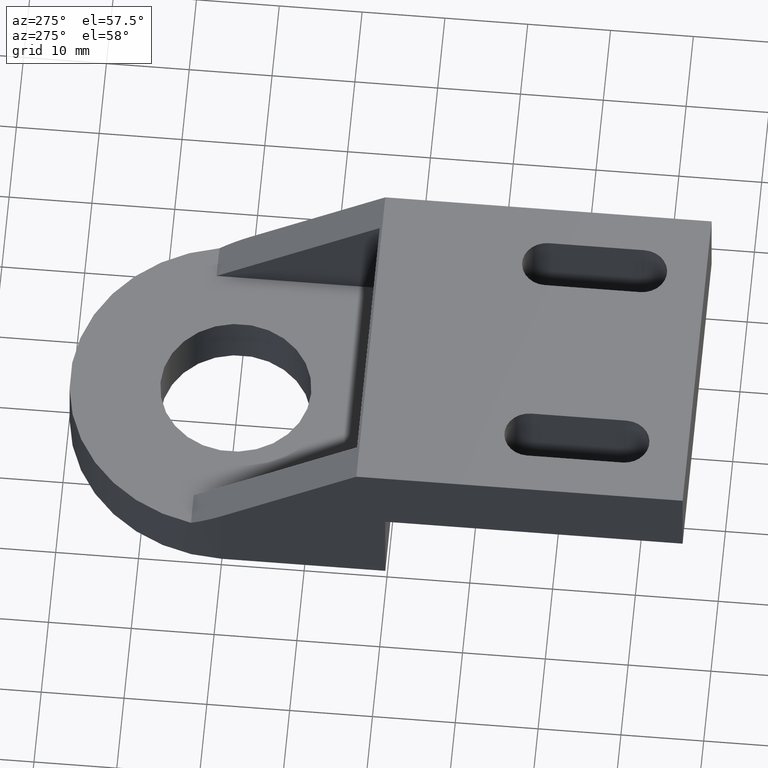
[diagram: clean part render]
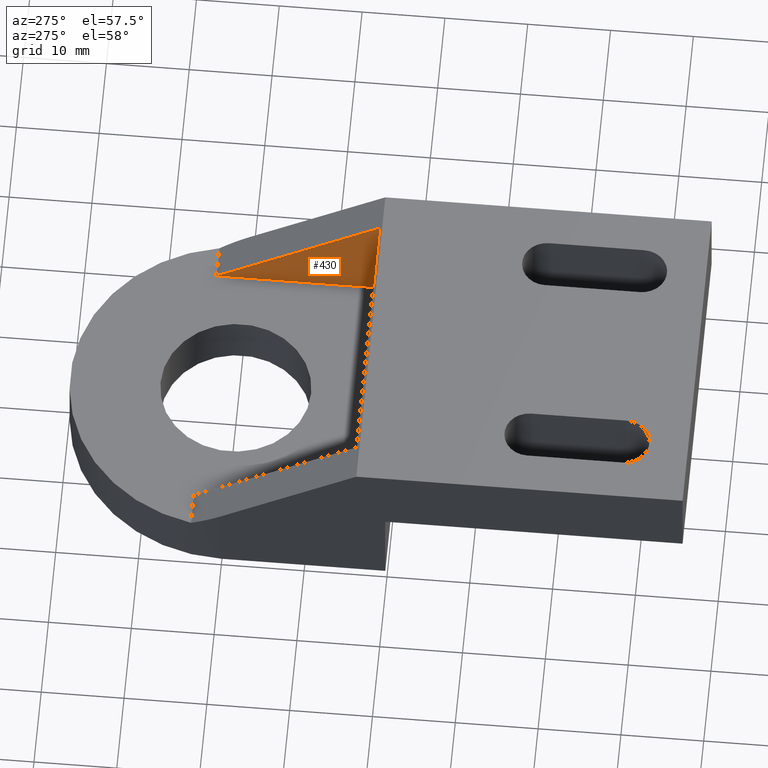
[diagram: same view with one face highlighted and labeled with its STEP entity id]
A machine part, auxiliary view. The second image highlights one B-rep face of the part: STEP entity #430.
In plain terms, the highlighted planar face has unit normal (-1, 0, 0).
Its self-contained STEP definition (entity closure, byte-faithful):
#52=FACE_OUTER_BOUND('',#79,.T.);
#79=EDGE_LOOP('',(#357,#358,#359));
#119=LINE('',#703,#165);
#125=LINE('',#715,#171);
#127=LINE('',#718,#173);
#165=VECTOR('',#571,23.8231571374463);
#171=VECTOR('',#581,13.3959999999465);
#173=VECTOR('',#585,19.6999999999212);
#216=VERTEX_POINT('',#700);
#217=VERTEX_POINT('',#702);
#221=VERTEX_POINT('',#714);
#264=EDGE_CURVE('',#216,#217,#119,.T.);
#270=EDGE_CURVE('',#217,#221,#125,.T.);
#272=EDGE_CURVE('',#221,#216,#127,.T.);
#357=ORIENTED_EDGE('',*,*,#270,.F.);
#358=ORIENTED_EDGE('',*,*,#264,.F.);
#359=ORIENTED_EDGE('',*,*,#272,.F.);
#413=PLANE('',#485);
#430=ADVANCED_FACE('',(#52),#413,.T.);
#485=AXIS2_PLACEMENT_3D('',#717,#583,#584);
#571=DIRECTION('',(0.,-0.826926502069527,0.562310021407281));
#581=DIRECTION('',(0.,0.,-1.));
#583=DIRECTION('center_axis',(-1.,0.,0.));
#584=DIRECTION('ref_axis',(0.,0.,1.));
#585=DIRECTION('',(0.,1.,0.));
#700=CARTESIAN_POINT('',(15.699999999938,3.69999999998481,6.99999999997154));
#702=CARTESIAN_POINT('',(15.699999999938,-15.9999999999363,20.395999999918));
#703=CARTESIAN_POINT('',(15.699999999938,3.69999999998481,6.99999999997154));
#714=CARTESIAN_POINT('',(15.699999999938,-15.9999999999363,6.99999999997154));
#715=CARTESIAN_POINT('',(15.699999999938,-15.9999999999363,20.395999999918));
#717=CARTESIAN_POINT('Origin',(15.699999999938,-15.9999999999363,20.5999999999172));
#718=CARTESIAN_POINT('',(15.699999999938,-15.9999999999363,6.99999999997154));